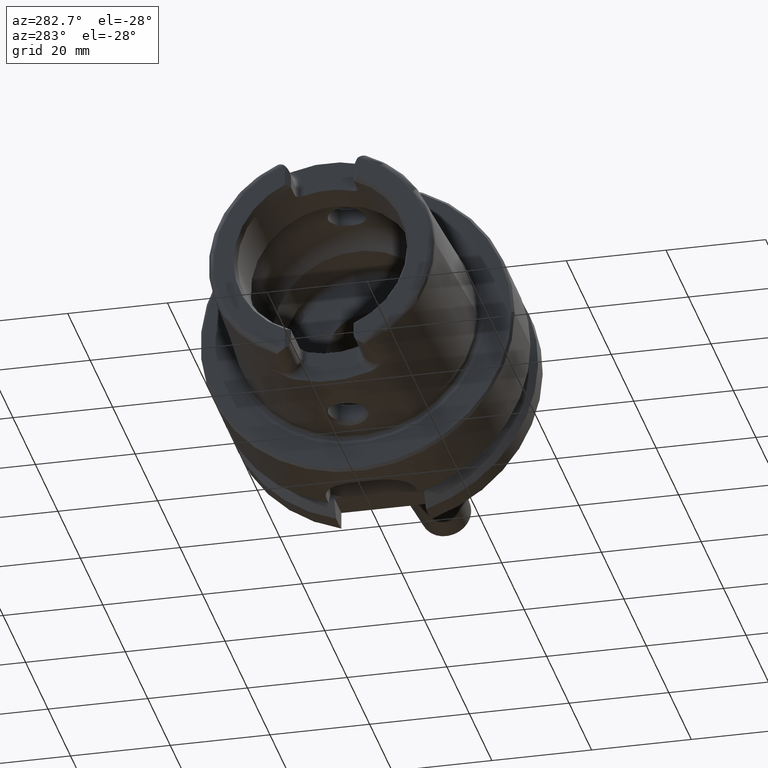
[diagram: clean part render]
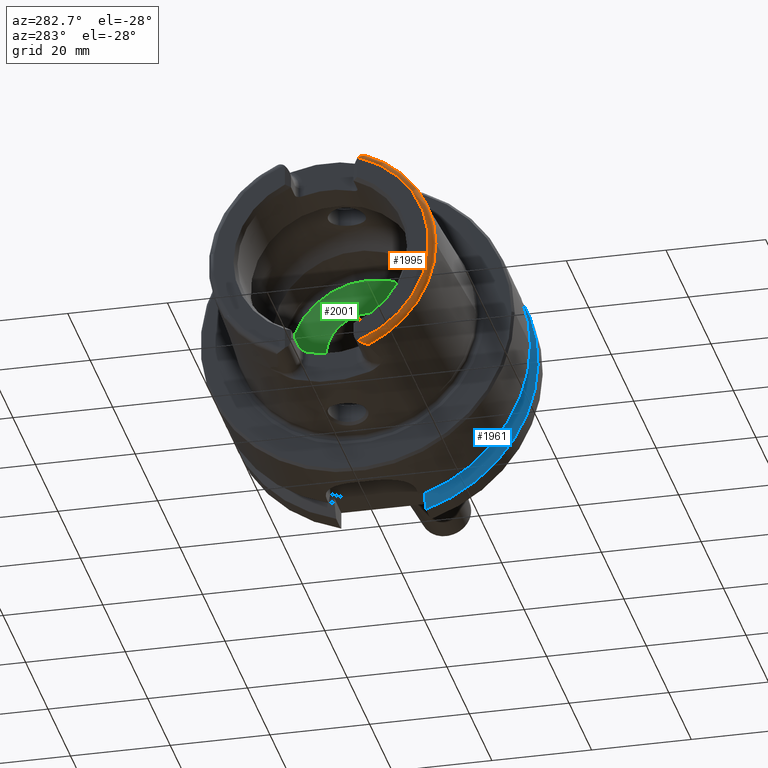
[diagram: same view with three faces highlighted in distinct colors, each labeled with its STEP entity id]
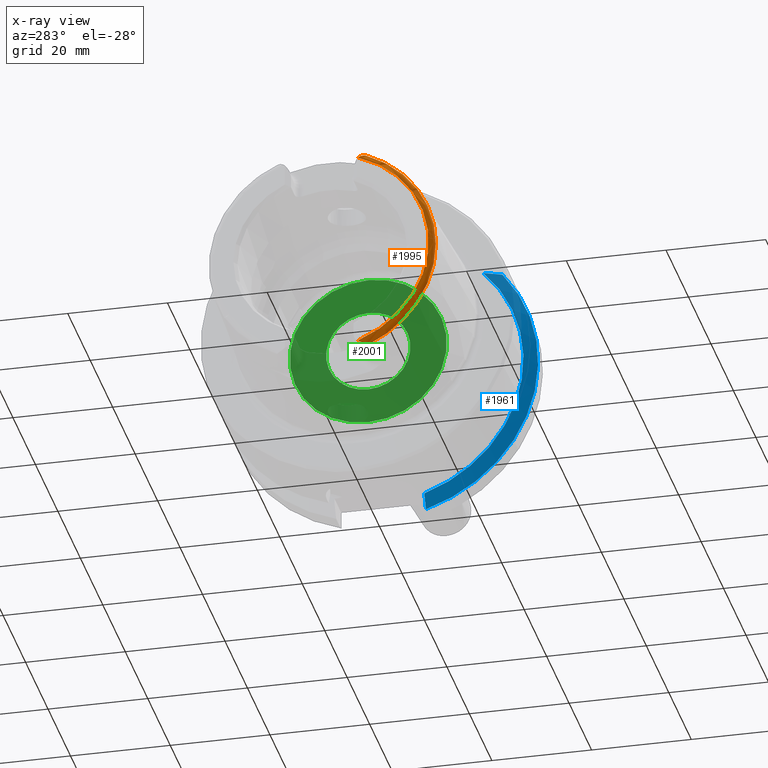
[diagram: x-ray of the same camera — body ghosted, the three highlighted faces saturated]
A machine part, auxiliary view with three faces highlighted in distinct colors.
The next image is the same camera in x-ray (body ghosted, the three faces saturated) — at least one of them is partly hidden behind the body in this view.
Their STEP definitions:

[orange] entity #1995 — the highlighted toroidal blend (fillet) surface has major radius 21.576 mm and minor (blend) radius 1.2 mm.
#32=B_SPLINE_CURVE_WITH_KNOTS('',3,(#2967,#2968,#2969,#2970,#2971,#2972,
#2973,#2974,#2975,#2976,#2977,#2978),.UNSPECIFIED.,.F.,.F.,(4,2,2,2,2,4),
(-0.196612183526961,-0.162100751777108,-0.0988537843219417,-0.0492481970353068,
-0.0201985054494333,0.),.UNSPECIFIED.);
#35=B_SPLINE_CURVE_WITH_KNOTS('',3,(#3058,#3059,#3060,#3061,#3062,#3063,
#3064,#3065,#3066,#3067,#3068,#3069),.UNSPECIFIED.,.F.,.F.,(4,2,2,2,2,4),
(-0.440016298339346,-0.413819168091726,-0.38684223146412,-0.314176502280688,
-0.242048966230796,-0.191409762337977),.UNSPECIFIED.);
#164=TOROIDAL_SURFACE('',#2236,21.5760400159857,1.2);
#281=FACE_OUTER_BOUND('',#399,.T.);
#399=EDGE_LOOP('',(#1793,#1794,#1795,#1796,#1797));
#659=CIRCLE('',#2095,22.7745368271334);
#663=CIRCLE('',#2099,22.7745368271334);
#727=CIRCLE('',#2233,21.5760400159857);
#783=VERTEX_POINT('',#2947);
#784=VERTEX_POINT('',#2966);
#803=VERTEX_POINT('',#3055);
#804=VERTEX_POINT('',#3057);
#819=VERTEX_POINT('',#3258);
#990=EDGE_CURVE('',#784,#783,#32,.T.);
#1015=EDGE_CURVE('',#804,#803,#35,.T.);
#1035=EDGE_CURVE('',#819,#783,#659,.T.);
#1047=EDGE_CURVE('',#804,#819,#663,.T.);
#1223=EDGE_CURVE('',#803,#784,#727,.T.);
#1793=ORIENTED_EDGE('',*,*,#1015,.T.);
#1794=ORIENTED_EDGE('',*,*,#1223,.T.);
#1795=ORIENTED_EDGE('',*,*,#990,.T.);
#1796=ORIENTED_EDGE('',*,*,#1035,.F.);
#1797=ORIENTED_EDGE('',*,*,#1047,.F.);
#1995=ADVANCED_FACE('',(#281),#164,.T.);
#2095=AXIS2_PLACEMENT_3D('',#3260,#2435,#2436);
#2099=AXIS2_PLACEMENT_3D('',#3364,#2443,#2444);
#2233=AXIS2_PLACEMENT_3D('',#4238,#2770,#2771);
#2236=AXIS2_PLACEMENT_3D('',#4241,#2776,#2777);
#2435=DIRECTION('center_axis',(1.,0.,0.));
#2436=DIRECTION('ref_axis',(0.,0.,-1.));
#2443=DIRECTION('center_axis',(1.,0.,0.));
#2444=DIRECTION('ref_axis',(0.,0.,-1.));
#2770=DIRECTION('center_axis',(1.,0.,0.));
#2771=DIRECTION('ref_axis',(0.,0.,-1.));
#2776=DIRECTION('center_axis',(1.,0.,0.));
#2777=DIRECTION('ref_axis',(0.,0.,-1.));
#2947=CARTESIAN_POINT('',(-30.8600449304182,-9.1175788960984,-20.8698175067219));
#2966=CARTESIAN_POINT('',(-32.,-7.39118810947246,-20.2705658801576));
#2967=CARTESIAN_POINT('Ctrl Pts',(-32.,-7.39118810947247,-20.2705658801576));
#2968=CARTESIAN_POINT('Ctrl Pts',(-32.,-7.51057646079925,-20.3626402436877));
#2969=CARTESIAN_POINT('Ctrl Pts',(-31.9798323447024,-7.63713759811651,-20.4450895592776));
#2970=CARTESIAN_POINT('Ctrl Pts',(-31.8795915966629,-8.00411514663101,-20.6460540241957));
#2971=CARTESIAN_POINT('Ctrl Pts',(-31.7662291944519,-8.24534617868917,-20.7330636375648));
#2972=CARTESIAN_POINT('Ctrl Pts',(-31.5260503396065,-8.62641311167603,-20.8272571305318));
#2973=CARTESIAN_POINT('Ctrl Pts',(-31.4080214744472,-8.77500391332017,-20.8477181028241));
#2974=CARTESIAN_POINT('Ctrl Pts',(-31.2168511506693,-8.95347341138424,-20.8640491182849));
#2975=CARTESIAN_POINT('Ctrl Pts',(-31.1371144343332,-9.01480627610083,-20.8671499279665));
#2976=CARTESIAN_POINT('Ctrl Pts',(-30.9904836833853,-9.08806135889972,-20.8694907892639));
#2977=CARTESIAN_POINT('Ctrl Pts',(-30.9268776870879,-9.10942530024495,-20.8697257132045));
#2978=CARTESIAN_POINT('Ctrl Pts',(-30.8600449304182,-9.11757889609838,-20.8698175067219));
#3055=CARTESIAN_POINT('',(-32.,-7.39118810947246,20.2705658801576));
#3057=CARTESIAN_POINT('',(-30.8600449304182,-9.1175788960984,20.8698175067219));
#3058=CARTESIAN_POINT('Ctrl Pts',(-30.8600449304182,-9.11757889609839,20.8698175067219));
#3059=CARTESIAN_POINT('Ctrl Pts',(-30.9283853966267,-9.1092413596916,20.8697236423942));
#3060=CARTESIAN_POINT('Ctrl Pts',(-30.9933437959442,-9.08709005778456,20.8694809526083));
#3061=CARTESIAN_POINT('Ctrl Pts',(-31.1177754091763,-9.02396510410894,20.8674193162914));
#3062=CARTESIAN_POINT('Ctrl Pts',(-31.1770034834694,-8.98246838908717,20.8654817144325));
#3063=CARTESIAN_POINT('Ctrl Pts',(-31.3775872414353,-8.81520504288704,20.8530880014962));
#3064=CARTESIAN_POINT('Ctrl Pts',(-31.521057678942,-8.63827412284131,20.8318261586711));
#3065=CARTESIAN_POINT('Ctrl Pts',(-31.7694065050575,-8.23592790359805,20.7289177452773));
#3066=CARTESIAN_POINT('Ctrl Pts',(-31.8689043999789,-8.02084936775806,20.6497346714256));
#3067=CARTESIAN_POINT('Ctrl Pts',(-31.9746332690681,-7.66799906728034,20.4648878758955));
#3068=CARTESIAN_POINT('Ctrl Pts',(-32.,-7.52524774054413,20.3739549886328));
#3069=CARTESIAN_POINT('Ctrl Pts',(-32.,-7.39118810947247,20.2705658801576));
#3258=CARTESIAN_POINT('',(-30.8600449304182,-22.7745368271334,-2.78907636274124E-15));
#3260=CARTESIAN_POINT('Origin',(-30.8600449304182,0.,0.));
#3364=CARTESIAN_POINT('Origin',(-30.8600449304182,0.,0.));
#4238=CARTESIAN_POINT('Origin',(-32.,0.,0.));
#4241=CARTESIAN_POINT('Origin',(-30.8,0.,0.));

[blue] entity #1961 — the highlighted conical surface has half-angle 60 deg.
#17=(
BOUNDED_CURVE()
B_SPLINE_CURVE(2,(#3685,#3686,#3687),.UNSPECIFIED.,.F.,.F.)
B_SPLINE_CURVE_WITH_KNOTS((3,3),(0.,0.378858277140999),.UNSPECIFIED.)
CURVE()
GEOMETRIC_REPRESENTATION_ITEM()
RATIONAL_B_SPLINE_CURVE((1.,1.00166199353854,1.))
REPRESENTATION_ITEM('')
);
#23=(
BOUNDED_CURVE()
B_SPLINE_CURVE(2,(#3825,#3826,#3827),.UNSPECIFIED.,.F.,.F.)
B_SPLINE_CURVE_WITH_KNOTS((3,3),(0.,0.311314369989023),.UNSPECIFIED.)
CURVE()
GEOMETRIC_REPRESENTATION_ITEM()
RATIONAL_B_SPLINE_CURVE((1.,1.00102053193598,1.))
REPRESENTATION_ITEM('')
);
#177=CONICAL_SURFACE('',#2175,30.1987976320958,1.0471975511966);
#247=FACE_OUTER_BOUND('',#364,.T.);
#364=EDGE_LOOP('',(#1601,#1602,#1603,#1604));
#684=CIRCLE('',#2135,28.8975952641916);
#698=CIRCLE('',#2168,31.5);
#847=VERTEX_POINT('',#3681);
#849=VERTEX_POINT('',#3684);
#871=VERTEX_POINT('',#3781);
#876=VERTEX_POINT('',#3823);
#1077=EDGE_CURVE('',#849,#847,#17,.T.);
#1107=EDGE_CURVE('',#847,#871,#684,.T.);
#1117=EDGE_CURVE('',#871,#876,#23,.T.);
#1164=EDGE_CURVE('',#849,#876,#698,.T.);
#1601=ORIENTED_EDGE('',*,*,#1077,.T.);
#1602=ORIENTED_EDGE('',*,*,#1107,.T.);
#1603=ORIENTED_EDGE('',*,*,#1117,.T.);
#1604=ORIENTED_EDGE('',*,*,#1164,.F.);
#1961=ADVANCED_FACE('',(#247),#177,.T.);
#2135=AXIS2_PLACEMENT_3D('',#3783,#2535,#2536);
#2168=AXIS2_PLACEMENT_3D('',#4035,#2621,#2622);
#2175=AXIS2_PLACEMENT_3D('',#4050,#2637,#2638);
#2535=DIRECTION('center_axis',(1.,0.,0.));
#2536=DIRECTION('ref_axis',(0.,0.,-1.));
#2621=DIRECTION('center_axis',(1.,0.,0.));
#2622=DIRECTION('ref_axis',(0.,0.,-1.));
#2637=DIRECTION('center_axis',(1.,0.,0.));
#2638=DIRECTION('ref_axis',(0.,-0.966819045705046,-0.255462194584608));
#3681=CARTESIAN_POINT('',(19.875,-20.8583559288126,20.));
#3684=CARTESIAN_POINT('',(21.3774990747593,-24.3361870472759,20.));
#3685=CARTESIAN_POINT('Ctrl Pts',(21.3774990747593,-24.3361870472759,20.));
#3686=CARTESIAN_POINT('Ctrl Pts',(20.5684390397668,-22.5223452916166,20.));
#3687=CARTESIAN_POINT('Ctrl Pts',(19.875,-20.8583559288126,20.));
#3781=CARTESIAN_POINT('',(19.875,-9.,-27.4603534582684));
#3783=CARTESIAN_POINT('Origin',(19.875,0.,0.));
#3823=CARTESIAN_POINT('',(21.3774990747593,-9.,-30.1869176962472));
#3825=CARTESIAN_POINT('Ctrl Pts',(19.875,-9.,-27.4603534582684));
#3826=CARTESIAN_POINT('Ctrl Pts',(20.5907174110267,-9.,-28.7648946319029));
#3827=CARTESIAN_POINT('Ctrl Pts',(21.3774990747593,-9.,-30.1869176962472));
#4035=CARTESIAN_POINT('Origin',(21.3774990747593,0.,0.));
#4050=CARTESIAN_POINT('Origin',(20.6262495373797,0.,0.));

[green] entity #2001 — the highlighted planar face has unit normal (1, 0, 0).
#104=FACE_BOUND('',#408,.T.);
#144=PLANE('',#2249);
#287=FACE_OUTER_BOUND('',#407,.T.);
#407=EDGE_LOOP('',(#1816));
#408=EDGE_LOOP('',(#1817));
#729=CIRCLE('',#2238,8.458734);
#736=CIRCLE('',#2250,15.75);
#931=VERTEX_POINT('',#4243);
#937=VERTEX_POINT('',#4263);
#1225=EDGE_CURVE('',#931,#931,#729,.T.);
#1234=EDGE_CURVE('',#937,#937,#736,.T.);
#1816=ORIENTED_EDGE('',*,*,#1234,.T.);
#1817=ORIENTED_EDGE('',*,*,#1225,.T.);
#2001=ADVANCED_FACE('',(#287,#104),#144,.F.);
#2238=AXIS2_PLACEMENT_3D('',#4244,#2780,#2781);
#2249=AXIS2_PLACEMENT_3D('',#4262,#2804,#2805);
#2250=AXIS2_PLACEMENT_3D('',#4264,#2806,#2807);
#2780=DIRECTION('center_axis',(1.,0.,0.));
#2781=DIRECTION('ref_axis',(0.,0.,1.));
#2804=DIRECTION('center_axis',(1.,0.,0.));
#2805=DIRECTION('ref_axis',(0.,0.,-1.));
#2806=DIRECTION('center_axis',(-1.,0.,0.));
#2807=DIRECTION('ref_axis',(0.,0.,1.));
#4243=CARTESIAN_POINT('',(10.,-1.03589615179389E-15,-8.458734));
#4244=CARTESIAN_POINT('Origin',(10.,0.,0.));
#4262=CARTESIAN_POINT('Origin',(10.,15.75,0.));
#4263=CARTESIAN_POINT('',(10.,-1.92881870865708E-15,-15.75));
#4264=CARTESIAN_POINT('Origin',(10.,0.,0.));